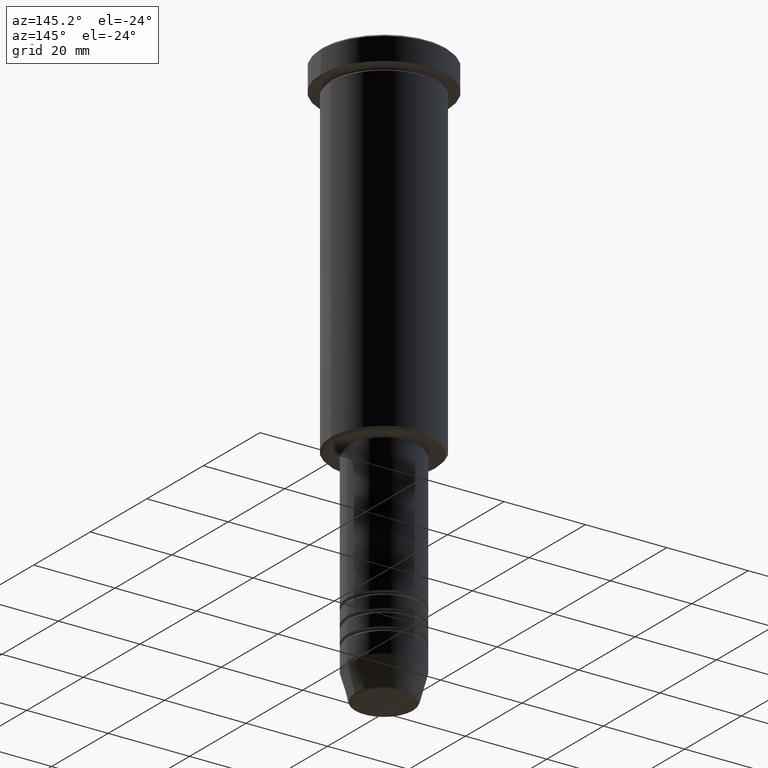
[diagram: clean part render]
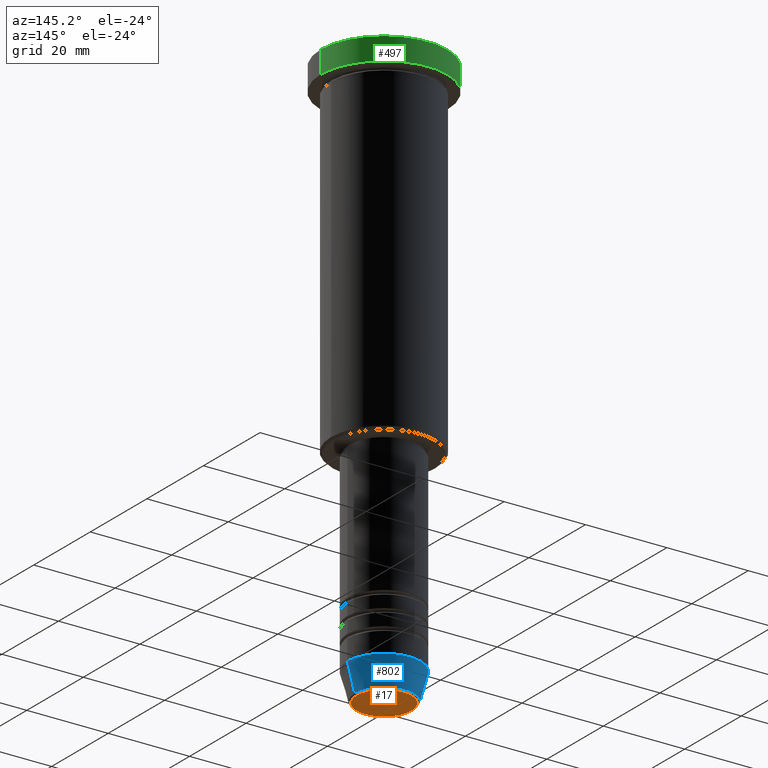
[diagram: same view with three faces highlighted in distinct colors, each labeled with its STEP entity id]
A machine part, auxiliary view with three faces highlighted in distinct colors.
Their STEP definitions:

[orange] entity #17 — the highlighted planar face has unit normal (0, -0, 1).
#17 = ADVANCED_FACE ( 'NONE', ( #630 ), #1098, .F. ) ;
#22 = CIRCLE ( 'NONE', #1087, 6.740692158992658278 ) ;
#31 = EDGE_CURVE ( 'NONE', #87, #552, #22, .T. ) ;
#86 = CARTESIAN_POINT ( 'NONE',  ( 0.000000000000000000, 0.000000000000000000, -141.0000000000000000 ) ) ;
#87 = VERTEX_POINT ( 'NONE', #728 ) ;
#320 = ORIENTED_EDGE ( 'NONE', *, *, #1049, .T. ) ;
#337 = DIRECTION ( 'NONE',  ( 0.000000000000000000, 0.000000000000000000, -1.000000000000000000 ) ) ;
#357 = CARTESIAN_POINT ( 'NONE',  ( 0.000000000000000000, 0.000000000000000000, -141.0000000000000000 ) ) ;
#429 = CARTESIAN_POINT ( 'NONE',  ( 6.740692158992658278, 0.000000000000000000, -141.0000000000000000 ) ) ;
#453 = CIRCLE ( 'NONE', #871, 6.740692158992658278 ) ;
#523 = DIRECTION ( 'NONE',  ( 1.000000000000000000, 0.000000000000000000, 0.000000000000000000 ) ) ;
#552 = VERTEX_POINT ( 'NONE', #429 ) ;
#630 = FACE_OUTER_BOUND ( 'NONE', #641, .T. ) ;
#640 = DIRECTION ( 'NONE',  ( 1.000000000000000000, 0.000000000000000000, 0.000000000000000000 ) ) ;
#641 = EDGE_LOOP ( 'NONE', ( #320, #1037 ) ) ;
#728 = CARTESIAN_POINT ( 'NONE',  ( -6.740692158992658278, 8.550696569392685681E-16, -141.0000000000000000 ) ) ;
#871 = AXIS2_PLACEMENT_3D ( 'NONE', #1074, #337, #523 ) ;
#890 = DIRECTION ( 'NONE',  ( 0.000000000000000000, -0.000000000000000000, 1.000000000000000000 ) ) ;
#988 = DIRECTION ( 'NONE',  ( 0.000000000000000000, 0.000000000000000000, -1.000000000000000000 ) ) ;
#1001 = DIRECTION ( 'NONE',  ( 1.000000000000000000, 0.000000000000000000, 0.000000000000000000 ) ) ;
#1037 = ORIENTED_EDGE ( 'NONE', *, *, #31, .T. ) ;
#1049 = EDGE_CURVE ( 'NONE', #552, #87, #453, .T. ) ;
#1074 = CARTESIAN_POINT ( 'NONE',  ( 0.000000000000000000, 0.000000000000000000, -141.0000000000000000 ) ) ;
#1087 = AXIS2_PLACEMENT_3D ( 'NONE', #86, #988, #640 ) ;
#1098 = PLANE ( 'NONE',  #1122 ) ;
#1122 = AXIS2_PLACEMENT_3D ( 'NONE', #357, #890, #1001 ) ;

[blue] entity #802 — the highlighted conical surface has half-angle 15 deg.
#55 = AXIS2_PLACEMENT_3D ( 'NONE', #261, #448, #161 ) ;
#84 = DIRECTION ( 'NONE',  ( 1.000000000000000000, 0.000000000000000000, 0.000000000000000000 ) ) ;
#109 = AXIS2_PLACEMENT_3D ( 'NONE', #484, #421, #348 ) ;
#161 = DIRECTION ( 'NONE',  ( 1.000000000000000000, 0.000000000000000000, 0.000000000000000000 ) ) ;
#164 = ORIENTED_EDGE ( 'NONE', *, *, #492, .T. ) ;
#200 = VERTEX_POINT ( 'NONE', #1117 ) ;
#261 = CARTESIAN_POINT ( 'NONE',  ( 0.000000000000000000, 0.000000000000000000, -140.6294095225512990 ) ) ;
#286 = VECTOR ( 'NONE', #359, 1000.000000000000000 ) ;
#292 = LINE ( 'NONE', #834, #324 ) ;
#324 = VECTOR ( 'NONE', #755, 1000.000000000000000 ) ;
#348 = DIRECTION ( 'NONE',  ( 1.000000000000000000, 0.000000000000000000, 0.000000000000000000 ) ) ;
#359 = DIRECTION ( 'NONE',  ( -0.2588190451025213501, 3.169619151431772337E-17, 0.9659258262890680902 ) ) ;
#413 = CIRCLE ( 'NONE', #432, 9.000000000000000000 ) ;
#420 = ORIENTED_EDGE ( 'NONE', *, *, #608, .F. ) ;
#421 = DIRECTION ( 'NONE',  ( -0.000000000000000000, -0.000000000000000000, 1.000000000000000000 ) ) ;
#432 = AXIS2_PLACEMENT_3D ( 'NONE', #1182, #625, #84 ) ;
#441 = ORIENTED_EDGE ( 'NONE', *, *, #901, .T. ) ;
#448 = DIRECTION ( 'NONE',  ( -0.000000000000000000, -0.000000000000000000, 1.000000000000000000 ) ) ;
#484 = CARTESIAN_POINT ( 'NONE',  ( 0.000000000000000000, 0.000000000000000000, -134.0000000000000000 ) ) ;
#492 = EDGE_CURVE ( 'NONE', #1115, #200, #780, .T. ) ;
#608 = EDGE_CURVE ( 'NONE', #1115, #683, #292, .T. ) ;
#622 = CONICAL_SURFACE ( 'NONE', #109, 9.000000000000000000, 0.2617993877991500740 ) ;
#625 = DIRECTION ( 'NONE',  ( -0.000000000000000000, -0.000000000000000000, 1.000000000000000000 ) ) ;
#633 = CARTESIAN_POINT ( 'NONE',  ( -9.000000000000000000, 1.102182119232617714E-15, -134.0000000000000000 ) ) ;
#671 = FACE_OUTER_BOUND ( 'NONE', #1070, .T. ) ;
#683 = VERTEX_POINT ( 'NONE', #1010 ) ;
#755 = DIRECTION ( 'NONE',  ( 0.2588190451025213501, 0.000000000000000000, 0.9659258262890680902 ) ) ;
#780 = CIRCLE ( 'NONE', #55, 7.223655072137188604 ) ;
#802 = ADVANCED_FACE ( 'NONE', ( #671 ), #622, .T. ) ;
#834 = CARTESIAN_POINT ( 'NONE',  ( 9.000000000000000000, 0.000000000000000000, -134.0000000000000000 ) ) ;
#888 = EDGE_CURVE ( 'NONE', #683, #951, #413, .T. ) ;
#898 = CARTESIAN_POINT ( 'NONE',  ( 7.223655072137188604, 0.000000000000000000, -140.6294095225512990 ) ) ;
#901 = EDGE_CURVE ( 'NONE', #200, #951, #909, .T. ) ;
#909 = LINE ( 'NONE', #633, #286 ) ;
#951 = VERTEX_POINT ( 'NONE', #1091 ) ;
#1010 = CARTESIAN_POINT ( 'NONE',  ( 9.000000000000000000, 0.000000000000000000, -134.0000000000000000 ) ) ;
#1069 = ORIENTED_EDGE ( 'NONE', *, *, #888, .F. ) ;
#1070 = EDGE_LOOP ( 'NONE', ( #164, #441, #1069, #420 ) ) ;
#1091 = CARTESIAN_POINT ( 'NONE',  ( -9.000000000000000000, 1.102182119232617714E-15, -134.0000000000000000 ) ) ;
#1115 = VERTEX_POINT ( 'NONE', #898 ) ;
#1117 = CARTESIAN_POINT ( 'NONE',  ( -7.223655072137189492, 9.934123627281765110E-16, -140.6294095225512990 ) ) ;
#1182 = CARTESIAN_POINT ( 'NONE',  ( 0.000000000000000000, 0.000000000000000000, -134.0000000000000000 ) ) ;

[green] entity #497 — the highlighted cylindrical surface (partial cylindrical patch) has radius 15.5 mm, axis along (-0, -0, 1).
#16 = LINE ( 'NONE', #1126, #1106 ) ;
#92 = CARTESIAN_POINT ( 'NONE',  ( 15.50000000000000000, 0.000000000000000000, -5.999999999999995559 ) ) ;
#156 = LINE ( 'NONE', #876, #380 ) ;
#188 = EDGE_CURVE ( 'NONE', #748, #754, #506, .T. ) ;
#189 = CIRCLE ( 'NONE', #485, 15.50000000000000000 ) ;
#216 = CARTESIAN_POINT ( 'NONE',  ( 15.50000000000000000, 0.000000000000000000, -0.5000000000000125455 ) ) ;
#253 = EDGE_CURVE ( 'NONE', #903, #754, #16, .T. ) ;
#306 = ORIENTED_EDGE ( 'NONE', *, *, #1030, .T. ) ;
#316 = VERTEX_POINT ( 'NONE', #950 ) ;
#354 = DIRECTION ( 'NONE',  ( 1.000000000000000000, 0.000000000000000000, 0.000000000000000000 ) ) ;
#363 = AXIS2_PLACEMENT_3D ( 'NONE', #482, #756, #1027 ) ;
#376 = DIRECTION ( 'NONE',  ( -0.000000000000000000, -0.000000000000000000, 1.000000000000000000 ) ) ;
#380 = VECTOR ( 'NONE', #808, 1000.000000000000000 ) ;
#438 = FACE_OUTER_BOUND ( 'NONE', #1013, .T. ) ;
#482 = CARTESIAN_POINT ( 'NONE',  ( 0.000000000000000000, 0.000000000000000000, -0.5000000000000125455 ) ) ;
#485 = AXIS2_PLACEMENT_3D ( 'NONE', #1009, #914, #354 ) ;
#497 = ADVANCED_FACE ( 'NONE', ( #438 ), #629, .T. ) ;
#506 = CIRCLE ( 'NONE', #363, 15.50000000000000000 ) ;
#517 = DIRECTION ( 'NONE',  ( -0.000000000000000000, -0.000000000000000000, 1.000000000000000000 ) ) ;
#536 = ORIENTED_EDGE ( 'NONE', *, *, #253, .F. ) ;
#543 = ORIENTED_EDGE ( 'NONE', *, *, #945, .T. ) ;
#629 = CYLINDRICAL_SURFACE ( 'NONE', #821, 15.50000000000000000 ) ;
#748 = VERTEX_POINT ( 'NONE', #1077 ) ;
#754 = VERTEX_POINT ( 'NONE', #216 ) ;
#756 = DIRECTION ( 'NONE',  ( 0.000000000000000000, 0.000000000000000000, -1.000000000000000000 ) ) ;
#808 = DIRECTION ( 'NONE',  ( -0.000000000000000000, -0.000000000000000000, 1.000000000000000000 ) ) ;
#821 = AXIS2_PLACEMENT_3D ( 'NONE', #991, #517, #895 ) ;
#876 = CARTESIAN_POINT ( 'NONE',  ( -15.50000000000000000, 1.898202538678397557E-15, 0.000000000000000000 ) ) ;
#895 = DIRECTION ( 'NONE',  ( 1.000000000000000000, 0.000000000000000000, 0.000000000000000000 ) ) ;
#903 = VERTEX_POINT ( 'NONE', #92 ) ;
#914 = DIRECTION ( 'NONE',  ( -0.000000000000000000, -0.000000000000000000, 1.000000000000000000 ) ) ;
#945 = EDGE_CURVE ( 'NONE', #903, #316, #189, .T. ) ;
#950 = CARTESIAN_POINT ( 'NONE',  ( -15.50000000000000000, 1.898202538678397557E-15, -5.999999999999995559 ) ) ;
#956 = ORIENTED_EDGE ( 'NONE', *, *, #188, .T. ) ;
#991 = CARTESIAN_POINT ( 'NONE',  ( 0.000000000000000000, 0.000000000000000000, 0.000000000000000000 ) ) ;
#1009 = CARTESIAN_POINT ( 'NONE',  ( 0.000000000000000000, 0.000000000000000000, -5.999999999999995559 ) ) ;
#1013 = EDGE_LOOP ( 'NONE', ( #543, #306, #956, #536 ) ) ;
#1027 = DIRECTION ( 'NONE',  ( 1.000000000000000000, 0.000000000000000000, 0.000000000000000000 ) ) ;
#1030 = EDGE_CURVE ( 'NONE', #316, #748, #156, .T. ) ;
#1077 = CARTESIAN_POINT ( 'NONE',  ( -15.50000000000000000, 1.898202538678397557E-15, -0.5000000000000125455 ) ) ;
#1106 = VECTOR ( 'NONE', #376, 1000.000000000000000 ) ;
#1126 = CARTESIAN_POINT ( 'NONE',  ( 15.50000000000000000, 0.000000000000000000, 0.000000000000000000 ) ) ;